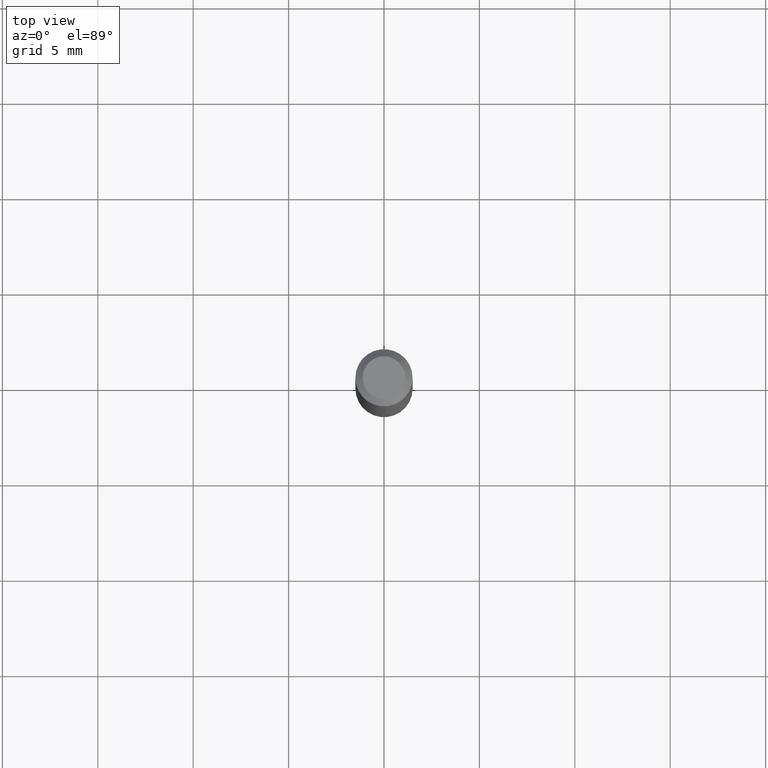
[diagram: clean part render]
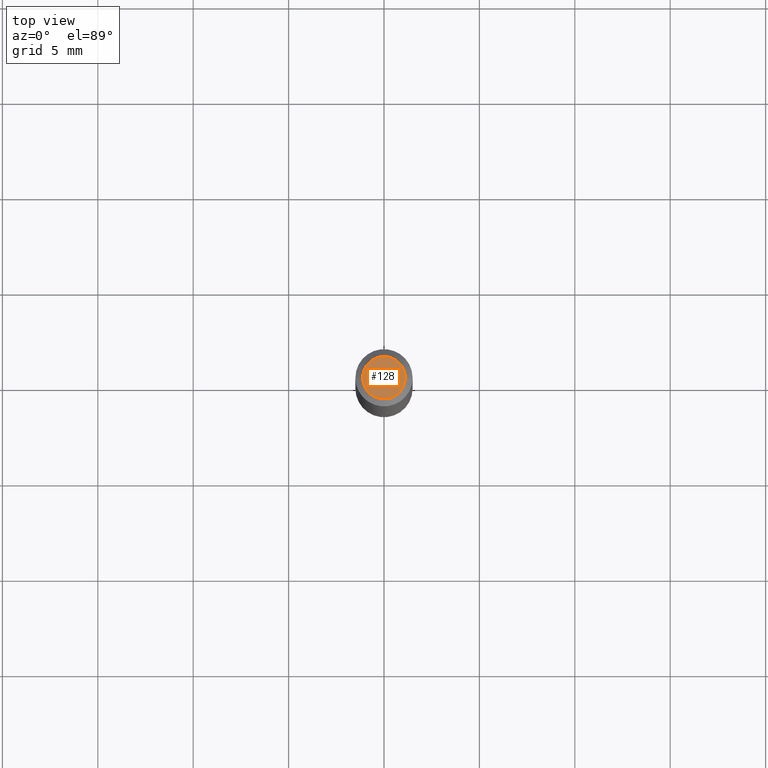
[diagram: same view with one face highlighted and labeled with its STEP entity id]
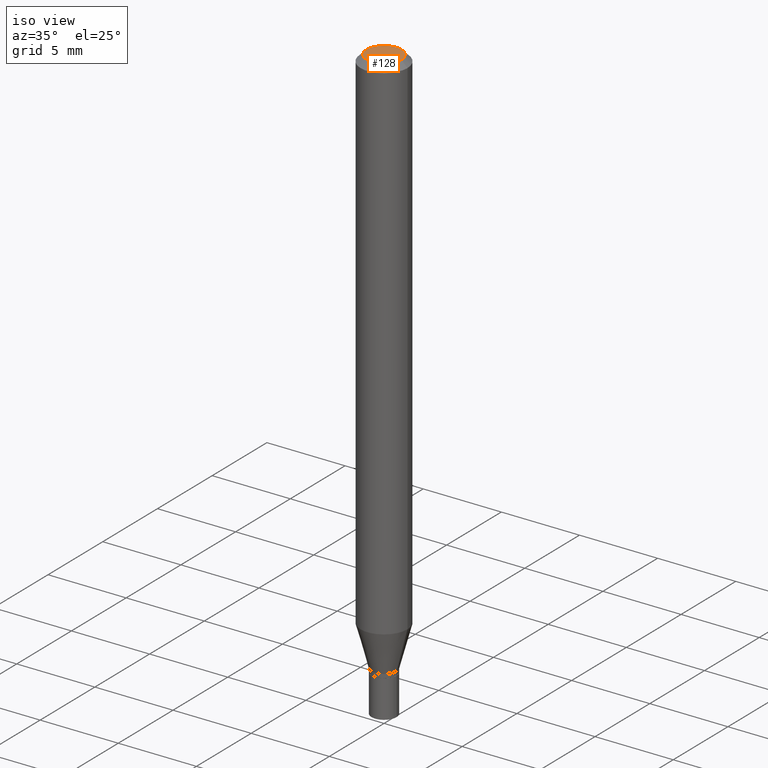
[diagram: same view with one face highlighted and labeled with its STEP entity id]
A machine part, top view. The second image highlights one B-rep face of the part: STEP entity #128.
A second angle (iso view) of the same face is appended — the face is thin or edge-on in the first view.
In plain terms, the highlighted planar face has unit normal (0, -0, -1).
Its self-contained STEP definition (entity closure, byte-faithful):
#36 = EDGE_CURVE ( 'NONE', #252, #363, #142, .T. ) ;
#54 = DIRECTION ( 'NONE',  ( -2.445468806185136597E-29, 3.491481338843145583E-15, 1.000000000000000000 ) ) ;
#63 = PLANE ( 'NONE',  #443 ) ;
#104 = CARTESIAN_POINT ( 'NONE',  ( -0.04404999999999999888, 3.337856159934039069E-16, 2.531384086379446237E-16 ) ) ;
#108 = AXIS2_PLACEMENT_3D ( 'NONE', #230, #54, #344 ) ;
#128 = ADVANCED_FACE ( 'NONE', ( #236 ), #63, .F. ) ;
#133 = DIRECTION ( 'NONE',  ( 1.000000000000000000, -6.982962677686265922E-15, 4.888540261209747396E-29 ) ) ;
#142 = CIRCLE ( 'NONE', #108, 0.04404999999999999888 ) ;
#148 = ORIENTED_EDGE ( 'NONE', *, *, #314, .T. ) ;
#153 = AXIS2_PLACEMENT_3D ( 'NONE', #404, #338, #133 ) ;
#173 = EDGE_LOOP ( 'NONE', ( #148, #307 ) ) ;
#203 = CARTESIAN_POINT ( 'NONE',  ( 3.075995059520799729E-16, 0.04404999999999999888, -2.723054865706713532E-17 ) ) ;
#215 = CARTESIAN_POINT ( 'NONE',  ( 0.04404999999999999888, -3.798447818264456135E-16, 2.531384086379492583E-16 ) ) ;
#222 = CIRCLE ( 'NONE', #153, 0.04404999999999999888 ) ;
#230 = CARTESIAN_POINT ( 'NONE',  ( -6.190420819714451422E-45, 8.838280299038419248E-31, 2.531384086379468424E-16 ) ) ;
#236 = FACE_OUTER_BOUND ( 'NONE', #173, .T. ) ;
#252 = VERTEX_POINT ( 'NONE', #215 ) ;
#269 = DIRECTION ( 'NONE',  ( -1.000000000000000000, 6.982962677686265922E-15, -4.876176775795935793E-29 ) ) ;
#307 = ORIENTED_EDGE ( 'NONE', *, *, #36, .T. ) ;
#314 = EDGE_CURVE ( 'NONE', #363, #252, #222, .T. ) ;
#338 = DIRECTION ( 'NONE',  ( -2.445468806185136597E-29, 3.491481338843145583E-15, 1.000000000000000000 ) ) ;
#344 = DIRECTION ( 'NONE',  ( 1.000000000000000000, -6.982962677686265922E-15, 4.888540261209747396E-29 ) ) ;
#363 = VERTEX_POINT ( 'NONE', #104 ) ;
#393 = DIRECTION ( 'NONE',  ( 2.438088387897960049E-29, -3.491481338843145188E-15, -1.000000000000000000 ) ) ;
#404 = CARTESIAN_POINT ( 'NONE',  ( -6.190420819714451422E-45, 8.838280299038419248E-31, 2.531384086379468424E-16 ) ) ;
#443 = AXIS2_PLACEMENT_3D ( 'NONE', #203, #393, #269 ) ;